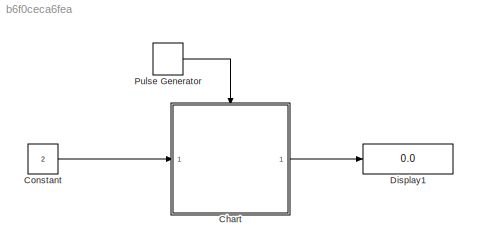
MODEL slx_b6f0ceca6fea
KIND model
CONFIG AbsTol = auto
CONFIG EnableMultiTasking = off
CONFIG FixedStep = auto
CONFIG MaxStep = auto
CONFIG MinStep = auto
CONFIG RelTol = 1e-3
CONFIG SampleTimeConstraint = Unconstrained
CONFIG SolverName = VariableStepAuto
CONFIG StartTime = 0.0
CONFIG StopTime = 10.0
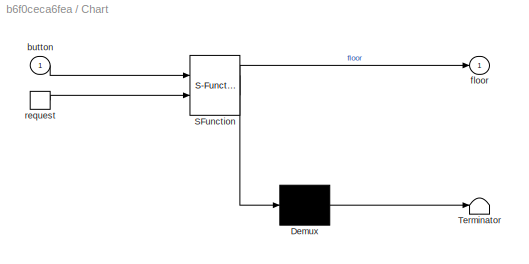
BLOCK [SubSystem] Chart
  ErrorFcn = Stateflow.Translate.translate
  PermitHierarchicalResolution = ExplicitOnly
  Ports = [1, 1, 0, 1]
  RequestExecContextInheritance = off
  SFBlockType = Chart
  TreatAsAtomicUnit = on
BLOCK [Demux] Chart/ Demux 
  Outputs = 1
  Ports = [1, 1]
BLOCK [S-Function] Chart/ SFunction 
  EnableBusSupport = on
  FunctionName = sf_sfun
  PortCounts = [2 2]
  Ports = [2, 2]
  SFcnIsStateOwnerBlock = off
  SFunctionDeploymentMode = off
  Tag = Stateflow S-Function 3
BLOCK [Terminator] Chart/ Terminator 
BLOCK [Inport] Chart/button
BLOCK [Outport] Chart/floor
BLOCK [TriggerPort] Chart/request
  Ports = [0, 1]
  ShowOutputPort = on
  StatesWhenEnabling = held
  VariantControl = (inherit)
BLOCK [Constant] Constant
  Value = 2
BLOCK [Display] Display1
  Decimation = 1
  Ports = [1]
BLOCK [DiscretePulseGenerator] Pulse Generator
  Period = 10
  Ports = [0, 1]
  PulseType = Time based
  PulseWidth = 5
LINE Chart:1 -> Display1:1
LINE Constant:1 -> Chart:1
LINE Pulse Generator:1 -> Chart:trigger
CHART Chart states=12 transitions=46
  STATE_LABEL 'Idle'
  STATE_LABEL 'Initial\nen:\ndoor_close=1;'
  STATE_LABEL 'Lift_work'
  STATE_LABEL 'Run'
  STATE_LABEL 'Floor1\nen:\nfloor=1;'
  STATE_LABEL '[floor==button]'
  STATE_LABEL '{door_close=0;}/{delay.cnt}'
  STATE_LABEL 'Floor2\nen:\nfloor=2;'
  STATE_LABEL '[floor==button]'
  STATE_LABEL '{door_close=0;}/{delay.cnt}'
  STATE_LABEL 'Floor3\nen:\nfloor=3;'
  STATE_LABEL '[floor==button]'
  STATE_LABEL '{door_close=0;}/{delay.cnt}'
  STATE_LABEL 'Floor4\nen:\nfloor=4;'
  STATE_LABEL '[floor==button]'
  STATE_LABEL '{door_close=0;}/{delay.cnt}'
  STATE_LABEL 'Floor5\nen:\nfloor=5;'
  STATE_LABEL '[floor==button]'
  STATE_LABEL '{door_close=0;}/{delay.cnt}'
  STATE_LABEL '[button<floor]'
  STATE_LABEL '[button>floor]'
  STATE_LABEL '[button<floor]'
  STATE_LABEL '[button>floor]'
  STATE_LABEL '[button<floor]'
  STATE_LABEL '[button>floor]'
  STATE_LABEL '[button<floor]'
  STATE_LABEL '[button>floor]'
  STATE_LABEL 'delay'
  STATE_LABEL 'init\nen:\nd=0;'
  STATE_LABEL 'Hold\ndu:\nd=d+1;\n'
  STATE_LABEL '[d>5]{door_close=1}'
  STATE_LABEL 'cnt'
  STATE_LABEL 'Run'
  STATE_LABEL 'Floor1\nen:\nfloor=1;'
  STATE_LABEL '[floor==button]'
  STATE_LABEL '{door_close=0;}/{delay.cnt}'
  STATE_LABEL 'Floor2\nen:\nfloor=2;'
  STATE_LABEL '[floor==button]'
  STATE_LABEL '{door_close=0;}/{delay.cnt}'
  STATE_LABEL 'Floor3\nen:\nfloor=3;'
CHART  states=0 transitions=0
